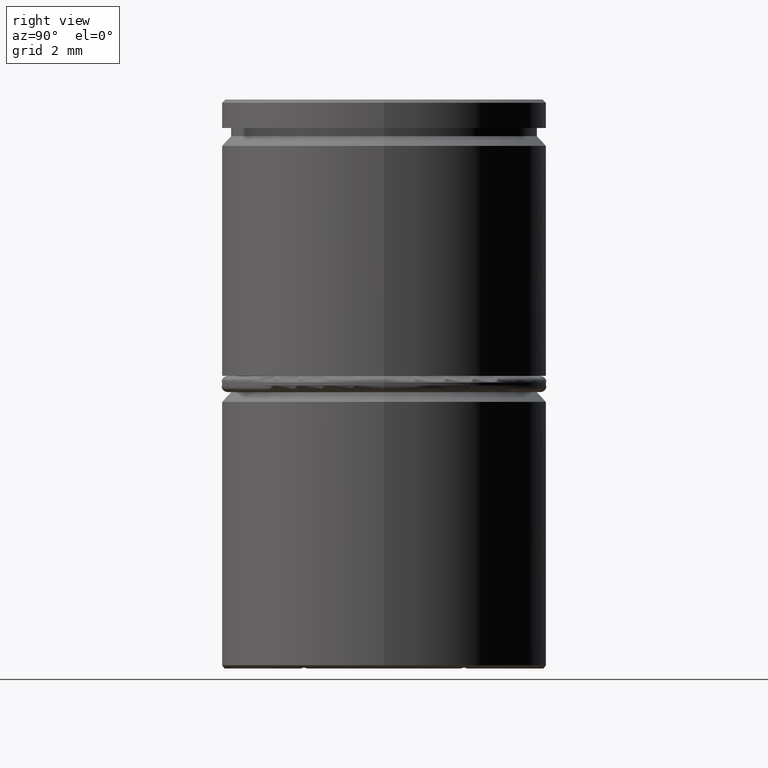
[diagram: clean part render]
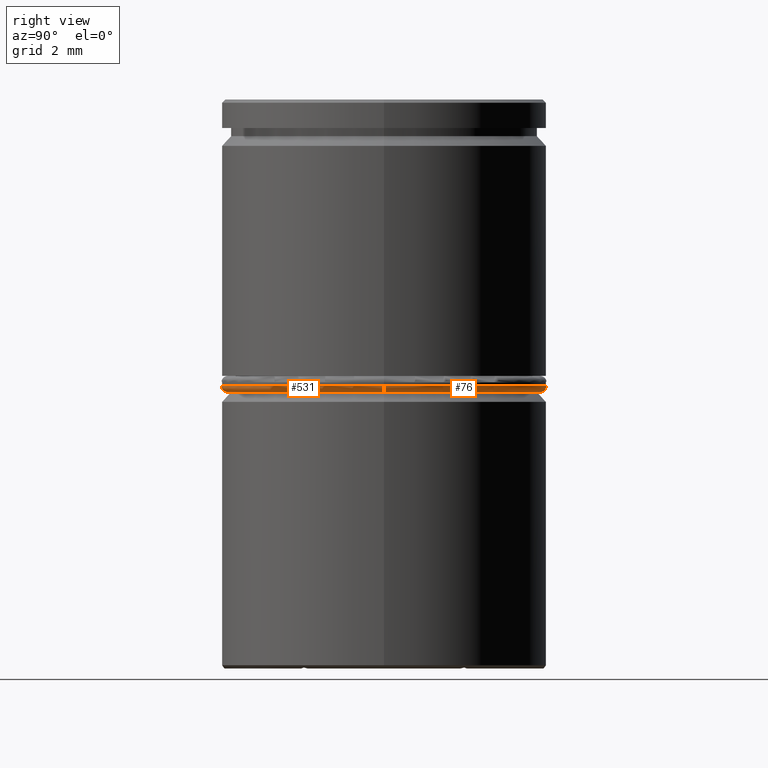
[diagram: same view with one multi-face feature highlighted, each face labeled with its STEP entity id]
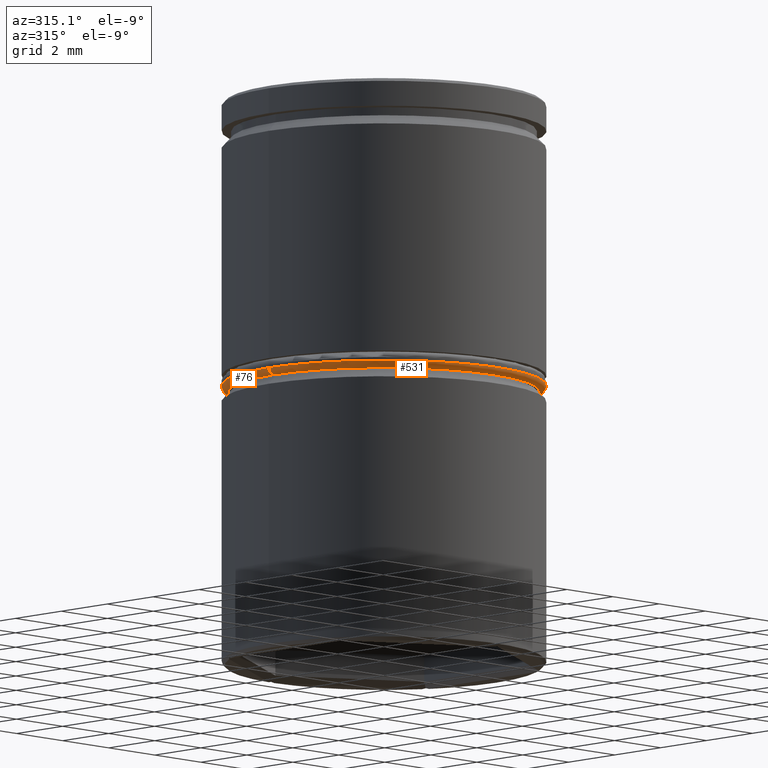
[diagram: same view with one multi-face feature highlighted, each face labeled with its STEP entity id]
A machine part, right view. The highlighted faces form ONE feature: a constant-radius fillet chain: 2 tangent blend faces with common blend radius 0.2 mm. The faces share edges in the B-rep.
A second angle (auxiliary view) of the same feature is appended — it is thin or edge-on in the first view.
Their STEP definitions:
[1] entity #76 (Torus):
#6 = CARTESIAN_POINT ( 'NONE',  ( 4.800000000000000711, 0.000000000000000000, -8.800000000000000711 ) ) ;
#76 = ADVANCED_FACE ( 'NONE', ( #728 ), #636, .T. ) ;
#80 = CARTESIAN_POINT ( 'NONE',  ( 0.000000000000000000, 0.000000000000000000, -8.800000000000000711 ) ) ;
#96 = AXIS2_PLACEMENT_3D ( 'NONE', #80, #390, #418 ) ;
#105 = VERTEX_POINT ( 'NONE', #641 ) ;
#115 = EDGE_LOOP ( 'NONE', ( #1380, #1234, #666, #727 ) ) ;
#126 = EDGE_CURVE ( 'NONE', #105, #1285, #1210, .T. ) ;
#143 = CARTESIAN_POINT ( 'NONE',  ( 0.000000000000000000, 0.000000000000000000, -8.800000000000000711 ) ) ;
#210 = EDGE_CURVE ( 'NONE', #105, #738, #1187, .T. ) ;
#219 = DIRECTION ( 'NONE',  ( 0.000000000000000000, 0.000000000000000000, -1.000000000000000000 ) ) ;
#318 = DIRECTION ( 'NONE',  ( -1.000000000000000000, 1.224646799147353454E-16, 0.000000000000000000 ) ) ;
#383 = DIRECTION ( 'NONE',  ( 1.000000000000000000, 0.000000000000000000, 0.000000000000000000 ) ) ;
#390 = DIRECTION ( 'NONE',  ( 0.000000000000000000, 0.000000000000000000, 1.000000000000000000 ) ) ;
#418 = DIRECTION ( 'NONE',  ( 1.000000000000000000, 0.000000000000000000, 0.000000000000000000 ) ) ;
#433 = DIRECTION ( 'NONE',  ( 0.000000000000000000, -1.000000000000000000, 0.000000000000000000 ) ) ;
#544 = AXIS2_PLACEMENT_3D ( 'NONE', #1173, #649, #318 ) ;
#589 = AXIS2_PLACEMENT_3D ( 'NONE', #143, #1254, #781 ) ;
#636 = TOROIDAL_SURFACE ( 'NONE', #96, 4.800000000000000711, 0.2000000000000000111 ) ;
#641 = CARTESIAN_POINT ( 'NONE',  ( -4.800000000000000711, 6.000769315822031726E-16, -9.000000000000001776 ) ) ;
#649 = DIRECTION ( 'NONE',  ( 1.224646799147353207E-16, 1.000000000000000000, -0.000000000000000000 ) ) ;
#666 = ORIENTED_EDGE ( 'NONE', *, *, #675, .F. ) ;
#675 = EDGE_CURVE ( 'NONE', #1161, #1285, #1190, .T. ) ;
#723 = CARTESIAN_POINT ( 'NONE',  ( 5.000000000000000000, 0.000000000000000000, -8.800000000000000711 ) ) ;
#727 = ORIENTED_EDGE ( 'NONE', *, *, #753, .F. ) ;
#728 = FACE_OUTER_BOUND ( 'NONE', #115, .T. ) ;
#738 = VERTEX_POINT ( 'NONE', #754 ) ;
#753 = EDGE_CURVE ( 'NONE', #738, #1161, #879, .T. ) ;
#754 = CARTESIAN_POINT ( 'NONE',  ( 4.800000000000000711, 0.000000000000000000, -9.000000000000001776 ) ) ;
#781 = DIRECTION ( 'NONE',  ( 1.000000000000000000, 0.000000000000000000, 0.000000000000000000 ) ) ;
#793 = CARTESIAN_POINT ( 'NONE',  ( 0.000000000000000000, 0.000000000000000000, -9.000000000000001776 ) ) ;
#879 = CIRCLE ( 'NONE', #1343, 0.2000000000000005107 ) ;
#895 = DIRECTION ( 'NONE',  ( -0.000000000000000000, -0.000000000000000000, -1.000000000000000000 ) ) ;
#1161 = VERTEX_POINT ( 'NONE', #723 ) ;
#1173 = CARTESIAN_POINT ( 'NONE',  ( -4.800000000000000711, 5.878304635907295197E-16, -8.800000000000000711 ) ) ;
#1187 = CIRCLE ( 'NONE', #1231, 4.800000000000000711 ) ;
#1190 = CIRCLE ( 'NONE', #589, 5.000000000000000000 ) ;
#1210 = CIRCLE ( 'NONE', #544, 0.1999999999999996503 ) ;
#1231 = AXIS2_PLACEMENT_3D ( 'NONE', #793, #895, #383 ) ;
#1234 = ORIENTED_EDGE ( 'NONE', *, *, #126, .T. ) ;
#1241 = CARTESIAN_POINT ( 'NONE',  ( -5.000000000000000000, 6.123233995736766282E-16, -8.800000000000000711 ) ) ;
#1254 = DIRECTION ( 'NONE',  ( 0.000000000000000000, 0.000000000000000000, 1.000000000000000000 ) ) ;
#1285 = VERTEX_POINT ( 'NONE', #1241 ) ;
#1343 = AXIS2_PLACEMENT_3D ( 'NONE', #6, #433, #219 ) ;
#1380 = ORIENTED_EDGE ( 'NONE', *, *, #210, .F. ) ;
[2] entity #531 (Torus):
#6 = CARTESIAN_POINT ( 'NONE',  ( 4.800000000000000711, 0.000000000000000000, -8.800000000000000711 ) ) ;
#105 = VERTEX_POINT ( 'NONE', #641 ) ;
#126 = EDGE_CURVE ( 'NONE', #105, #1285, #1210, .T. ) ;
#147 = EDGE_LOOP ( 'NONE', ( #496, #1052, #812, #1336 ) ) ;
#219 = DIRECTION ( 'NONE',  ( 0.000000000000000000, 0.000000000000000000, -1.000000000000000000 ) ) ;
#228 = FACE_OUTER_BOUND ( 'NONE', #147, .T. ) ;
#239 = DIRECTION ( 'NONE',  ( 0.000000000000000000, 0.000000000000000000, 1.000000000000000000 ) ) ;
#306 = CARTESIAN_POINT ( 'NONE',  ( 0.000000000000000000, 0.000000000000000000, -8.800000000000000711 ) ) ;
#318 = DIRECTION ( 'NONE',  ( -1.000000000000000000, 1.224646799147353454E-16, 0.000000000000000000 ) ) ;
#433 = DIRECTION ( 'NONE',  ( 0.000000000000000000, -1.000000000000000000, 0.000000000000000000 ) ) ;
#496 = ORIENTED_EDGE ( 'NONE', *, *, #126, .F. ) ;
#531 = ADVANCED_FACE ( 'NONE', ( #228 ), #680, .T. ) ;
#544 = AXIS2_PLACEMENT_3D ( 'NONE', #1173, #649, #318 ) ;
#629 = DIRECTION ( 'NONE',  ( 1.000000000000000000, 0.000000000000000000, 0.000000000000000000 ) ) ;
#634 = DIRECTION ( 'NONE',  ( 0.000000000000000000, 0.000000000000000000, 1.000000000000000000 ) ) ;
#641 = CARTESIAN_POINT ( 'NONE',  ( -4.800000000000000711, 6.000769315822031726E-16, -9.000000000000001776 ) ) ;
#649 = DIRECTION ( 'NONE',  ( 1.224646799147353207E-16, 1.000000000000000000, -0.000000000000000000 ) ) ;
#680 = TOROIDAL_SURFACE ( 'NONE', #1300, 4.800000000000000711, 0.2000000000000000111 ) ;
#723 = CARTESIAN_POINT ( 'NONE',  ( 5.000000000000000000, 0.000000000000000000, -8.800000000000000711 ) ) ;
#738 = VERTEX_POINT ( 'NONE', #754 ) ;
#753 = EDGE_CURVE ( 'NONE', #738, #1161, #879, .T. ) ;
#754 = CARTESIAN_POINT ( 'NONE',  ( 4.800000000000000711, 0.000000000000000000, -9.000000000000001776 ) ) ;
#812 = ORIENTED_EDGE ( 'NONE', *, *, #753, .T. ) ;
#817 = CARTESIAN_POINT ( 'NONE',  ( 0.000000000000000000, 0.000000000000000000, -9.000000000000001776 ) ) ;
#855 = CARTESIAN_POINT ( 'NONE',  ( 0.000000000000000000, 0.000000000000000000, -8.800000000000000711 ) ) ;
#879 = CIRCLE ( 'NONE', #1343, 0.2000000000000005107 ) ;
#884 = AXIS2_PLACEMENT_3D ( 'NONE', #306, #634, #629 ) ;
#910 = DIRECTION ( 'NONE',  ( 1.000000000000000000, 0.000000000000000000, 0.000000000000000000 ) ) ;
#920 = CIRCLE ( 'NONE', #1098, 4.800000000000000711 ) ;
#981 = DIRECTION ( 'NONE',  ( 1.000000000000000000, 0.000000000000000000, 0.000000000000000000 ) ) ;
#1052 = ORIENTED_EDGE ( 'NONE', *, *, #1200, .F. ) ;
#1058 = CIRCLE ( 'NONE', #884, 5.000000000000000000 ) ;
#1098 = AXIS2_PLACEMENT_3D ( 'NONE', #817, #1121, #910 ) ;
#1121 = DIRECTION ( 'NONE',  ( -0.000000000000000000, -0.000000000000000000, -1.000000000000000000 ) ) ;
#1161 = VERTEX_POINT ( 'NONE', #723 ) ;
#1173 = CARTESIAN_POINT ( 'NONE',  ( -4.800000000000000711, 5.878304635907295197E-16, -8.800000000000000711 ) ) ;
#1200 = EDGE_CURVE ( 'NONE', #738, #105, #920, .T. ) ;
#1210 = CIRCLE ( 'NONE', #544, 0.1999999999999996503 ) ;
#1241 = CARTESIAN_POINT ( 'NONE',  ( -5.000000000000000000, 6.123233995736766282E-16, -8.800000000000000711 ) ) ;
#1285 = VERTEX_POINT ( 'NONE', #1241 ) ;
#1300 = AXIS2_PLACEMENT_3D ( 'NONE', #855, #239, #981 ) ;
#1310 = EDGE_CURVE ( 'NONE', #1285, #1161, #1058, .T. ) ;
#1336 = ORIENTED_EDGE ( 'NONE', *, *, #1310, .F. ) ;
#1343 = AXIS2_PLACEMENT_3D ( 'NONE', #6, #433, #219 ) ;